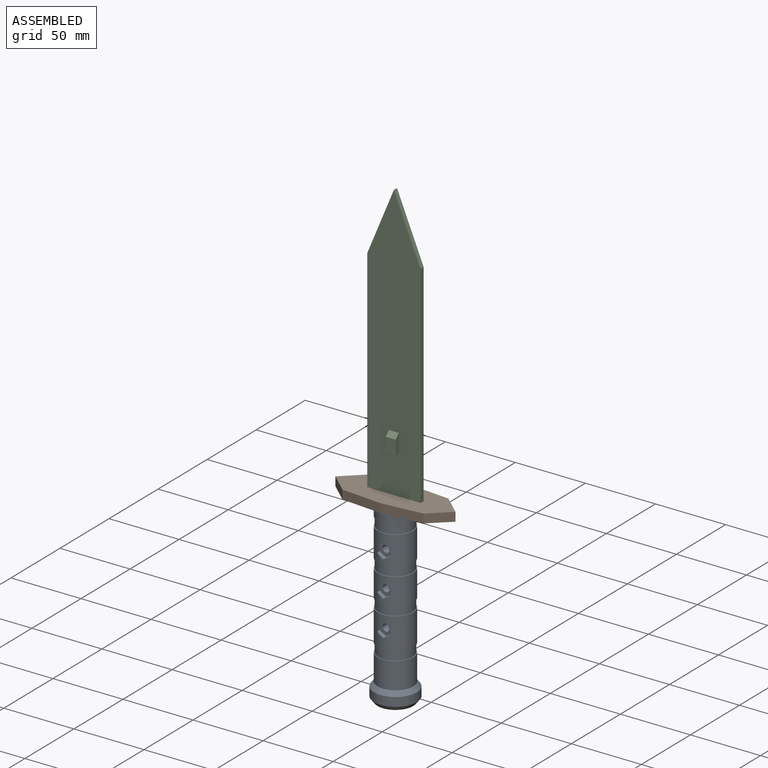
[diagram: assembled view]
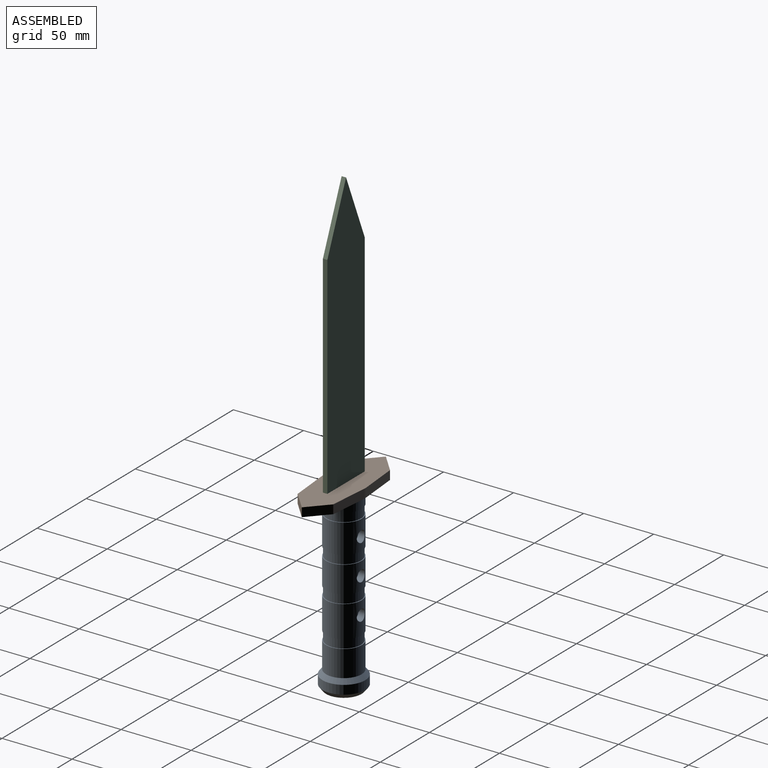
[diagram: assembled view, second angle]
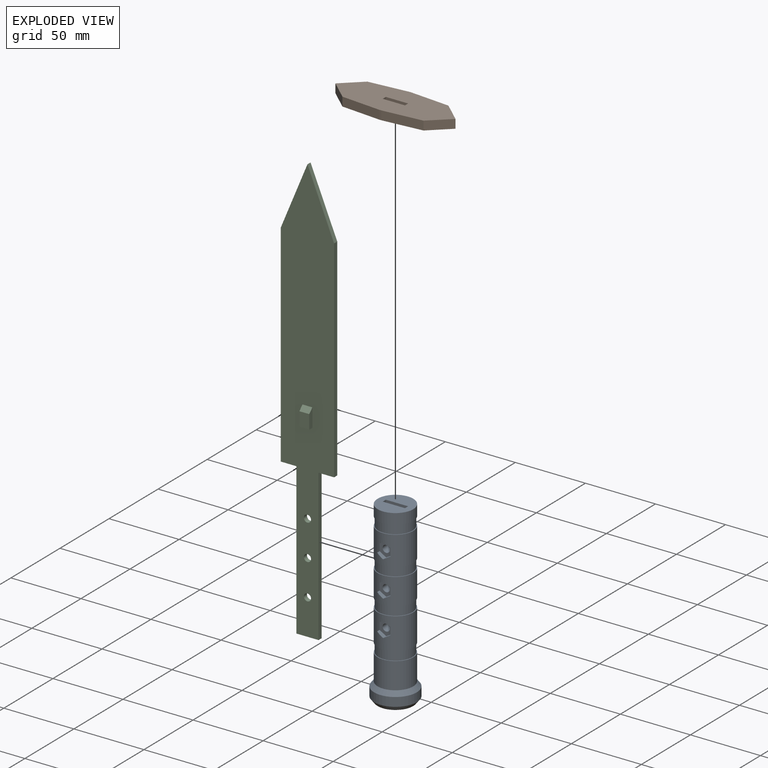
[diagram: exploded view]
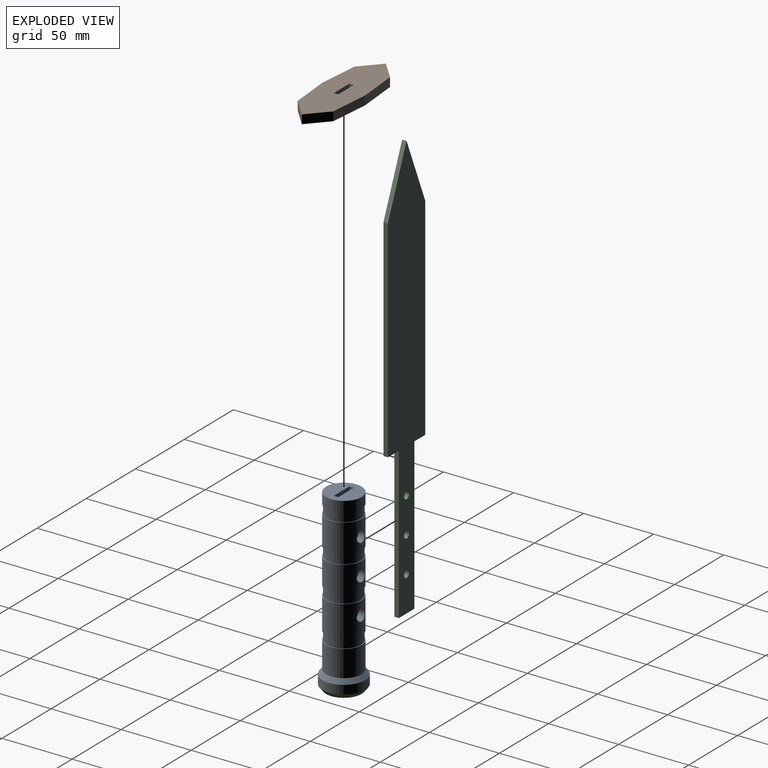
[diagram: exploded view, second angle]
ASSEMBLY  parts=3 mates=2
PART A: 60 faces, bbox 30.5x30.5x127.1 mm
  f0: cylinder r=2.55mm len=7.82mm, axis (0,-1,0), area 125.5mm2, adj f8,f55
  f1: cylinder r=2.55mm len=7.82mm, axis (0,-1,0), area 125.5mm2, adj f22,f55
  f2: cylinder r=2.55mm len=7.82mm, axis (0,-1,0), area 125.5mm2, adj f33,f55
  f3: plane 25.4x25.4mm, normal (0,0,1), area 456.3mm2, adj f18,f55,f56,f57,f58
  f4: cylinder r=2.55mm len=6.05mm, axis (0,-1,0), area 97mm2, adj f54,f57
  f5: cylinder r=2.55mm len=6.05mm, axis (0,-1,0), area 97mm2, adj f52,f57
  f6: cylinder r=2.55mm len=6.05mm, axis (0,-1,0), area 97mm2, adj f50,f57
  f7: cylinder r=12.7mm len=25.4mm, axis (0,0,-1), area 1528.9mm2, adj f9,f10,f11,f12,f13,f14,f16,f19
  f8: plane 11x9.52mm, normal (0,-1,0), area 58.1mm2, adj f0,f9,f10,f11,f12,f13,f14
  f9: plane 4.82x3.34mm, normal (-0.5,0,0.87), area 16.4mm2, adj f7,f8,f10,f14
  f10: plane 5.5x2.36mm, normal (-1,0,0), area 13mm2, adj f7,f8,f9,f11
  f11: plane 4.82x3.34mm, normal (-0.5,0,-0.87), area 16.4mm2, adj f7,f8,f10,f12
  f12: plane 4.82x3.34mm, normal (0.5,0,-0.87), area 16.4mm2, adj f7,f8,f11,f13
  f13: plane 5.5x2.36mm, normal (1,0,0), area 13mm2, adj f7,f8,f12,f14
  f14: plane 4.82x3.34mm, normal (0.5,0,0.87), area 16.4mm2, adj f7,f8,f9,f13
  f15: plane 25.4x25.4mm, normal (0,0,-1), area 39.7mm2, adj f17,f18
  f16: plane 25.4x25.4mm, normal (0,0,1), area 39.7mm2, adj f7,f17
  f17: cylinder r=12.19mm len=24.38mm, axis (0,0,-1), area 486.4mm2, adj f15,f16
  f18: cylinder r=12.7mm len=25.4mm, axis (0,0,-1), area 608mm2, adj f3,f15
  f19: plane 25.4x25.4mm, normal (0,0,-1), area 39.7mm2, adj f7,f21
  f20: plane 25.4x25.4mm, normal (0,0,1), area 39.7mm2, adj f21,f29
  f21: cylinder r=12.19mm len=24.38mm, axis (0,0,-1), area 486.4mm2, adj f19,f20
  f22: plane 11x9.52mm, normal (0,-1,0), area 58.1mm2, adj f1,f23,f24,f25,f26,f27,f28
  f23: plane 4.82x3.34mm, normal (0.5,0,0.87), area 16.4mm2, adj f22,f24,f28,f29
  f24: plane 4.82x3.34mm, normal (-0.5,0,0.87), area 16.4mm2, adj f22,f23,f25,f29
  f25: plane 5.5x2.36mm, normal (-1,0,0), area 13mm2, adj f22,f24,f26,f29
  f26: plane 4.82x3.34mm, normal (-0.5,0,-0.87), area 16.4mm2, adj f22,f25,f27,f29
  f27: plane 4.82x3.34mm, normal (0.5,0,-0.87), area 16.4mm2, adj f22,f26,f28,f29
  f28: plane 5.5x2.36mm, normal (1,0,0), area 13mm2, adj f22,f23,f27,f29
  f29: cylinder r=12.7mm len=25.4mm, axis (0,0,-1), area 1387mm2, adj f20,f23,f24,f25,f26,f27,f28,f30
  f30: plane 25.4x25.4mm, normal (0,0,-1), area 39.7mm2, adj f29,f32
  f31: plane 25.4x25.4mm, normal (0,0,1), area 39.7mm2, adj f32,f40
  f32: cylinder r=12.19mm len=24.38mm, axis (0,0,-1), area 486.4mm2, adj f30,f31
  f33: plane 11x9.52mm, normal (0,-1,0), area 58.1mm2, adj f2,f34,f35,f36,f37,f38,f39
  f34: plane 4.82x3.34mm, normal (0.5,0,0.87), area 16.4mm2, adj f33,f35,f39,f40
  f35: plane 4.82x3.34mm, normal (-0.5,0,0.87), area 16.4mm2, adj f33,f34,f36,f40
  f36: plane 5.5x2.36mm, normal (-1,0,0), area 13mm2, adj f33,f35,f37,f40
  f37: plane 4.82x3.34mm, normal (-0.5,0,-0.87), area 16.4mm2, adj f33,f36,f38,f40
  f38: plane 4.82x3.34mm, normal (0.5,0,-0.87), area 16.4mm2, adj f33,f37,f39,f40
  f39: plane 5.5x2.36mm, normal (1,0,0), area 13mm2, adj f33,f34,f38,f40
  f40: cylinder r=12.7mm len=25.4mm, axis (0,0,-1), area 1670.8mm2, adj f31,f34,f35,f36,f37,f38,f39,f41
  f41: plane 25.4x25.4mm, normal (0,0,-1), area 39.7mm2, adj f40,f43
  f42: plane 25.4x25.4mm, normal (0,0,1), area 39.7mm2, adj f43,f44
  f43: cylinder r=12.19mm len=24.38mm, axis (0,0,-1), area 486.4mm2, adj f41,f42
  f44: cylinder r=12.7mm len=25.4mm, axis (0,0,-1), area 1499.9mm2, adj f42,f48
  f45: cylinder r=15.24mm len=30.48mm, axis (0,0,-1), area 608mm2, adj f46,f48
  f46: cone r=12.7mm half-angle=38.7deg, axis (0,0,1), area 356.9mm2, adj f45,f47
  f47: plane 25.4x25.4mm, normal (0,0,-1), area 506.7mm2, adj f46
  f48: cone r=12.7mm half-angle=38.7deg, axis (0,0,-1), area 356.9mm2, adj f44,f45
  f49: cylinder r=4.06mm len=8.13mm, axis (0,1,0), area 120.9mm2, adj f40,f50
  f50: plane 8.13x8.13mm, normal (0,1,0), area 31.4mm2, adj f6,f49
  f51: cylinder r=4.06mm len=8.13mm, axis (0,1,0), area 120.9mm2, adj f29,f52
  f52: plane 8.13x8.13mm, normal (0,1,0), area 31.4mm2, adj f5,f51
  f53: cylinder r=4.06mm len=8.13mm, axis (0,1,0), area 120.9mm2, adj f7,f54
  f54: plane 8.13x8.13mm, normal (0,1,0), area 31.4mm2, adj f4,f53
  f55: plane 101.6x15.88mm, normal (0,1,0), area 1551.5mm2, adj f0,f1,f2,f3,f56,f58,f59
  f56: plane 101.6x3.18mm, normal (-1,0,0), area 322.6mm2, adj f3,f55,f57,f59
  f57: plane 101.6x15.88mm, normal (0,-1,0), area 1551.5mm2, adj f3,f4,f5,f6,f56,f58,f59
  f58: plane 101.6x3.18mm, normal (1,0,0), area 322.6mm2, adj f3,f55,f57,f59
  f59: plane 15.88x3.18mm, normal (0,0,1), area 50.4mm2, adj f55,f56,f57,f58
PART B: 16 faces, bbox 85.7x30.5x6.4 mm
  f0: plane 85.73x30.48mm, normal (0,0,-1), area 1923.8mm2, adj f2,f3,f4,f5,f6,f7,f8,f9
  f1: plane 85.73x30.48mm, normal (0,0,1), area 1923.8mm2, adj f2,f3,f4,f5,f6,f7,f8,f9
  f2: plane 13.93x12.7mm, normal (-0.67,-0.74,0), area 119.7mm2, adj f0,f1,f3,f11
  f3: plane 13.93x12.7mm, normal (-0.67,0.74,0), area 119.7mm2, adj f0,f1,f2,f4
  f4: plane 27.57x6.35mm, normal (-0.09,1,0), area 175.8mm2, adj f0,f1,f3,f5
  f5: cylinder r=15.24mm len=6.35mm, axis (0,0,1), area 17.4mm2, adj f0,f1,f4,f6
  f6: plane 27.57x6.35mm, normal (0.09,1,0), area 175.8mm2, adj f0,f1,f5,f7
  f7: plane 13.93x12.7mm, normal (0.67,0.74,0), area 119.7mm2, adj f0,f1,f6,f8
  f8: plane 13.93x12.7mm, normal (0.67,-0.74,0), area 119.7mm2, adj f0,f1,f7,f9
  f9: plane 27.57x6.35mm, normal (0.09,-1,0), area 175.8mm2, adj f0,f1,f8,f10
  f10: cylinder r=15.24mm len=6.35mm, axis (0,0,1), area 17.4mm2, adj f0,f1,f9,f11
  f11: plane 27.57x6.35mm, normal (-0.09,-1,0), area 175.8mm2, adj f0,f1,f2,f10
  f12: plane 15.88x6.35mm, normal (0,1,0), area 100.8mm2, adj f0,f1,f13,f15
  f13: plane 6.35x3.18mm, normal (-1,0,0), area 20.2mm2, adj f0,f1,f12,f14
  f14: plane 15.88x6.35mm, normal (0,-1,0), area 100.8mm2, adj f0,f1,f13,f15
  f15: plane 6.35x3.18mm, normal (1,0,0), area 20.2mm2, adj f0,f1,f12,f14
PART C: 19 faces, bbox 38.1x6.4x304.8 mm
  f0: plane 304.8x38.1mm, normal (0,-1,0), area 8184mm2, adj f1,f2,f3,f4,f5,f6,f7,f8
  f1: plane 107.95x3.18mm, normal (-1,0,0), area 342.7mm2, adj f0,f2,f9,f10
  f2: plane 15.88x3.18mm, normal (0,0,-1), area 50.4mm2, adj f0,f1,f3,f10
  f3: plane 107.95x3.18mm, normal (1,0,0), area 342.7mm2, adj f0,f2,f4,f10
  f4: plane 11.11x3.18mm, normal (0,0,-1), area 35.3mm2, adj f0,f3,f5,f10
  f5: plane 150.91x3.18mm, normal (1,0,0), area 479.2mm2, adj f0,f4,f6,f10
  f6: plane 45.94x19.05mm, normal (0.92,0,0.38), area 157.9mm2, adj f0,f5,f7,f10
  f7: plane 45.94x19.05mm, normal (-0.92,0,0.38), area 157.9mm2, adj f0,f6,f8,f10
  f8: plane 150.91x3.18mm, normal (-1,0,0), area 479.2mm2, adj f0,f7,f9,f10
  f9: plane 11.11x3.18mm, normal (0,0,-1), area 35.3mm2, adj f0,f1,f8,f10
  f10: plane 304.8x38.1mm, normal (0,1,0), area 8277.3mm2, adj f1,f2,f3,f4,f5,f6,f7,f8
  f11: cylinder r=2.55mm len=5.11mm, axis (0,-1,0), area 50.9mm2, adj f0,f10
  f12: cylinder r=2.55mm len=5.11mm, axis (0,-1,0), area 50.9mm2, adj f0,f10
  f13: cylinder r=2.55mm len=5.11mm, axis (0,-1,0), area 50.9mm2, adj f0,f10
  f14: plane 7.06x3.18mm, normal (0,0,-1), area 22.4mm2, adj f0,f15,f16,f17
  f15: plane 13.2x3.18mm, normal (1,0,0), area 36.9mm2, adj f0,f14,f17,f18
  f16: plane 13.2x3.18mm, normal (-1,0,0), area 36.9mm2, adj f0,f14,f17,f18
  f17: plane 10.03x7.06mm, normal (0,-1,0), area 70.8mm2, adj f14,f15,f16,f18
  f18: plane 7.06x3.18mm, normal (0,-0.71,0.71), area 31.7mm2, adj f0,f15,f16,f17
PLACE A t=(-21.42,-69.38,70.65)mm
PLACE B t=(-21.42,-69.38,70.65)mm
PLACE C t=(-21.42,-69.38,70.65)mm
MATE fastened B.f1 <-> C.f4  axis (0,0,1) through (-54.01,-70.97,-82.18)mm
MATE fastened A.f0 <-> C.f13  axis (0,1,0) through (-61.95,-70.97,-113.93)mm
